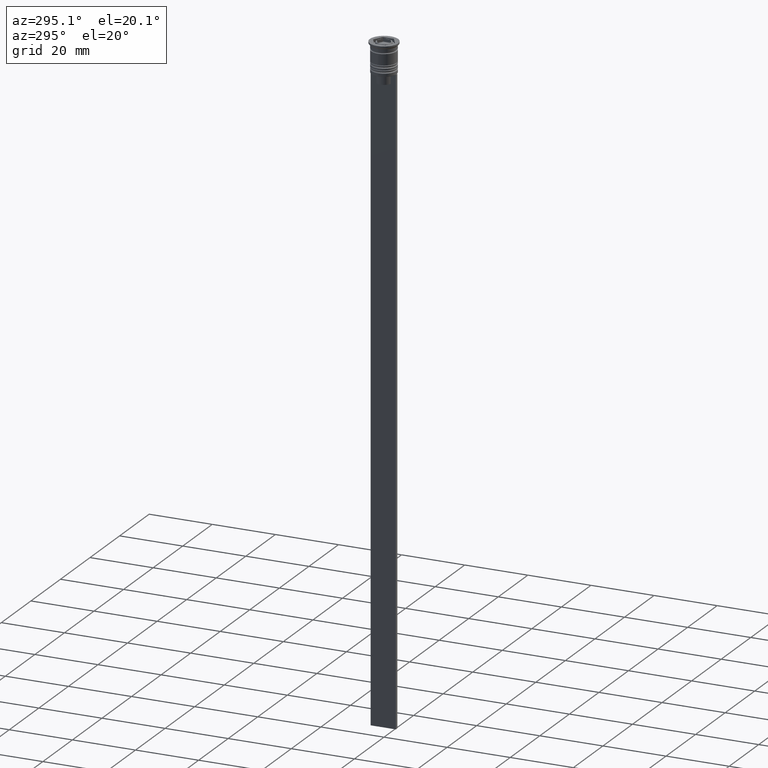
[diagram: clean part render]
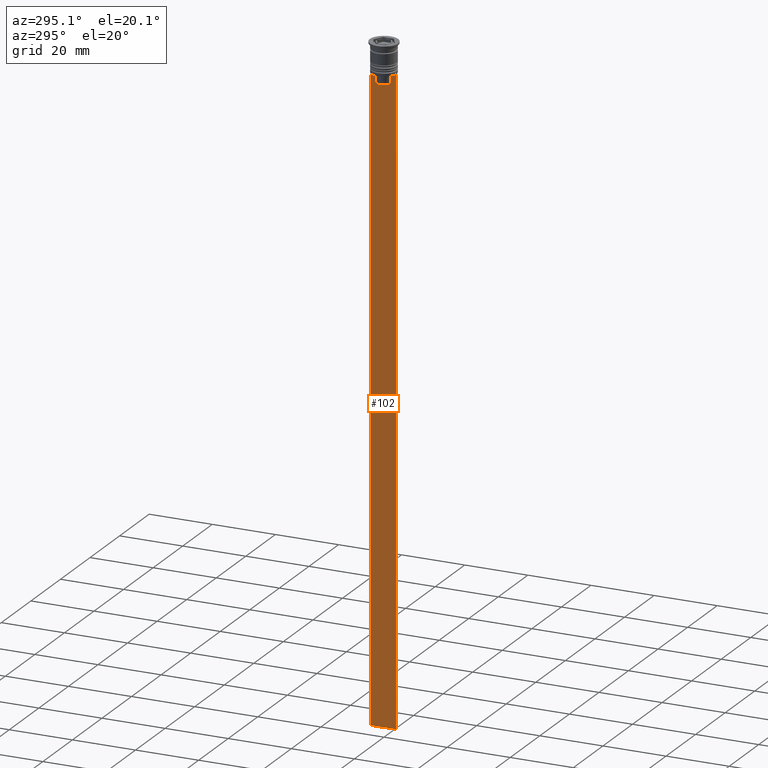
[diagram: same view with one face highlighted and labeled with its STEP entity id]
A machine part, auxiliary view. The second image highlights one B-rep face of the part: STEP entity #102.
In plain terms, the highlighted planar face has unit normal (-1, 0, 0).
Its self-contained STEP definition (entity closure, byte-faithful):
#15 = AXIS2_PLACEMENT_3D ( 'NONE', #1106, #2057, #1477 ) ;
#40 = LINE ( 'NONE', #2134, #1616 ) ;
#47 = ORIENTED_EDGE ( 'NONE', *, *, #1759, .F. ) ;
#90 = EDGE_LOOP ( 'NONE', ( #2059, #1266, #529, #1779, #1137, #2239, #1543, #2231, #47, #1643, #364, #498 ) ) ;
#102 = ADVANCED_FACE ( 'NONE', ( #1518 ), #316, .T. ) ;
#121 = B_SPLINE_CURVE_WITH_KNOTS ( 'NONE', 3,
 ( #825, #1218, #453, #251 ),
 .UNSPECIFIED., .F., .F.,
 ( 4, 4 ),
 ( 0.01178336557230038641, 0.01249758354768160454 ),
 .UNSPECIFIED. ) ;
#126 = DIRECTION ( 'NONE',  ( 0.000000000000000000, 0.000000000000000000, -1.000000000000000000 ) ) ;
#132 = LINE ( 'NONE', #2117, #380 ) ;
#165 = EDGE_CURVE ( 'NONE', #1805, #1261, #1710, .T. ) ;
#167 = DIRECTION ( 'NONE',  ( 0.000000000000000000, 0.000000000000000000, -1.000000000000000000 ) ) ;
#172 = VERTEX_POINT ( 'NONE', #1722 ) ;
#178 = CARTESIAN_POINT ( 'NONE',  ( -0.5000000000000000000, 2.856571371417138572, -9.500000000000000000 ) ) ;
#241 = DIRECTION ( 'NONE',  ( 0.000000000000000000, 1.000000000000000000, 0.000000000000000000 ) ) ;
#243 = CARTESIAN_POINT ( 'NONE',  ( -0.5000000000000000000, -4.000000000000000000, -209.5000000000000284 ) ) ;
#251 = CARTESIAN_POINT ( 'NONE',  ( -0.5000000000000000000, -2.856571371417138572, -9.500000000000000000 ) ) ;
#285 = CARTESIAN_POINT ( 'NONE',  ( -0.5000000000000000000, 2.687094542495897631, -9.666938847453439010 ) ) ;
#307 = VECTOR ( 'NONE', #1961, 1000.000000000000000 ) ;
#316 = PLANE ( 'NONE',  #15 ) ;
#344 = VECTOR ( 'NONE', #241, 1000.000000000000000 ) ;
#345 = DIRECTION ( 'NONE',  ( 0.000000000000000000, -1.000000000000000000, 0.000000000000000000 ) ) ;
#364 = ORIENTED_EDGE ( 'NONE', *, *, #165, .F. ) ;
#380 = VECTOR ( 'NONE', #731, 1000.000000000000000 ) ;
#384 = DIRECTION ( 'NONE',  ( 0.000000000000000000, -1.000000000000000000, 0.000000000000000000 ) ) ;
#418 = DIRECTION ( 'NONE',  ( 0.000000000000000000, -1.000000000000000000, 0.000000000000000000 ) ) ;
#448 = CARTESIAN_POINT ( 'NONE',  ( -0.5000000000000000000, -4.000000000000000000, -1.437742251701450202 ) ) ;
#452 = VERTEX_POINT ( 'NONE', #1915 ) ;
#453 = CARTESIAN_POINT ( 'NONE',  ( -0.5000000000000000000, -2.687095498514037839, -9.666937905752043037 ) ) ;
#470 = CARTESIAN_POINT ( 'NONE',  ( -0.5000000000000000000, 2.347338918861097135, -10.00000000000000000 ) ) ;
#498 = ORIENTED_EDGE ( 'NONE', *, *, #916, .F. ) ;
#524 = CARTESIAN_POINT ( 'NONE',  ( -0.5000000000000000000, 4.000000000000000000, -1.437742251701450202 ) ) ;
#529 = ORIENTED_EDGE ( 'NONE', *, *, #725, .F. ) ;
#535 = EDGE_CURVE ( 'NONE', #1913, #1441, #132, .T. ) ;
#586 = CARTESIAN_POINT ( 'NONE',  ( -0.5000000000000000000, -2.347338918861097135, 0.000000000000000000 ) ) ;
#600 = LINE ( 'NONE', #802, #1318 ) ;
#623 = LINE ( 'NONE', #1578, #344 ) ;
#648 = CARTESIAN_POINT ( 'NONE',  ( -0.5000000000000000000, 2.856571371417138572, -9.500000000000000000 ) ) ;
#706 = VERTEX_POINT ( 'NONE', #1414 ) ;
#725 = EDGE_CURVE ( 'NONE', #2407, #1913, #600, .T. ) ;
#731 = DIRECTION ( 'NONE',  ( 0.000000000000000000, -1.000000000000000000, 0.000000000000000000 ) ) ;
#740 = VERTEX_POINT ( 'NONE', #1981 ) ;
#802 = CARTESIAN_POINT ( 'NONE',  ( -0.5000000000000000000, -4.000000000000000000, -9.500000000000000000 ) ) ;
#825 = CARTESIAN_POINT ( 'NONE',  ( -0.5000000000000000000, -2.347338918861097135, -10.00000000000000000 ) ) ;
#884 = DIRECTION ( 'NONE',  ( 0.000000000000000000, 0.000000000000000000, -1.000000000000000000 ) ) ;
#916 = EDGE_CURVE ( 'NONE', #452, #1805, #1097, .T. ) ;
#1055 = CARTESIAN_POINT ( 'NONE',  ( -0.5000000000000000000, 2.517407211010871393, -9.833663366238582171 ) ) ;
#1061 = VERTEX_POINT ( 'NONE', #2370 ) ;
#1078 = VECTOR ( 'NONE', #1908, 1000.000000000000000 ) ;
#1097 = LINE ( 'NONE', #1724, #1611 ) ;
#1103 = CARTESIAN_POINT ( 'NONE',  ( -0.5000000000000000000, 3.867815921162741422, -9.500000000000000000 ) ) ;
#1106 = CARTESIAN_POINT ( 'NONE',  ( -0.5000000000000000000, -4.000000000000000000, -1.437742251701450202 ) ) ;
#1137 = ORIENTED_EDGE ( 'NONE', *, *, #1509, .F. ) ;
#1218 = CARTESIAN_POINT ( 'NONE',  ( -0.5000000000000000000, -2.517408374291112416, -9.833662228483172285 ) ) ;
#1246 = CARTESIAN_POINT ( 'NONE',  ( -0.5000000000000000000, -3.867815921162741422, -9.500000000000000000 ) ) ;
#1261 = VERTEX_POINT ( 'NONE', #2427 ) ;
#1266 = ORIENTED_EDGE ( 'NONE', *, *, #535, .F. ) ;
#1267 = EDGE_CURVE ( 'NONE', #740, #2305, #1652, .T. ) ;
#1284 = CARTESIAN_POINT ( 'NONE',  ( -0.5000000000000000000, 2.347338918861097135, -12.50000000000000000 ) ) ;
#1318 = VECTOR ( 'NONE', #418, 1000.000000000000000 ) ;
#1414 = CARTESIAN_POINT ( 'NONE',  ( -0.5000000000000000000, -2.856571371417138572, -9.500000000000000000 ) ) ;
#1441 = VERTEX_POINT ( 'NONE', #178 ) ;
#1477 = DIRECTION ( 'NONE',  ( 0.000000000000000000, 0.000000000000000000, 1.000000000000000000 ) ) ;
#1509 = EDGE_CURVE ( 'NONE', #2305, #1061, #623, .T. ) ;
#1518 = FACE_OUTER_BOUND ( 'NONE', #90, .T. ) ;
#1519 = LINE ( 'NONE', #524, #1535 ) ;
#1535 = VECTOR ( 'NONE', #167, 1000.000000000000000 ) ;
#1543 = ORIENTED_EDGE ( 'NONE', *, *, #1829, .F. ) ;
#1578 = CARTESIAN_POINT ( 'NONE',  ( -0.5000000000000000000, -4.000000000000000000, -209.5000000000000284 ) ) ;
#1610 = EDGE_CURVE ( 'NONE', #706, #1728, #40, .T. ) ;
#1611 = VECTOR ( 'NONE', #126, 1000.000000000000000 ) ;
#1616 = VECTOR ( 'NONE', #384, 1000.000000000000000 ) ;
#1643 = ORIENTED_EDGE ( 'NONE', *, *, #2496, .F. ) ;
#1652 = LINE ( 'NONE', #448, #1816 ) ;
#1710 = LINE ( 'NONE', #2261, #2416 ) ;
#1719 = CARTESIAN_POINT ( 'NONE',  ( -0.5000000000000000000, 4.000000000000000000, -9.500000000000000000 ) ) ;
#1722 = CARTESIAN_POINT ( 'NONE',  ( -0.5000000000000000000, -2.347338918861097135, -10.00000000000000000 ) ) ;
#1724 = CARTESIAN_POINT ( 'NONE',  ( -0.5000000000000000000, 2.347338918861097135, 0.000000000000000000 ) ) ;
#1728 = VERTEX_POINT ( 'NONE', #1246 ) ;
#1759 = EDGE_CURVE ( 'NONE', #172, #706, #121, .T. ) ;
#1779 = ORIENTED_EDGE ( 'NONE', *, *, #2021, .T. ) ;
#1805 = VERTEX_POINT ( 'NONE', #1284 ) ;
#1816 = VECTOR ( 'NONE', #884, 1000.000000000000000 ) ;
#1829 = EDGE_CURVE ( 'NONE', #1728, #740, #2120, .T. ) ;
#1908 = DIRECTION ( 'NONE',  ( 0.000000000000000000, -1.000000000000000000, 0.000000000000000000 ) ) ;
#1913 = VERTEX_POINT ( 'NONE', #1103 ) ;
#1915 = CARTESIAN_POINT ( 'NONE',  ( -0.5000000000000000000, 2.347338918861097135, -10.00000000000000000 ) ) ;
#1961 = DIRECTION ( 'NONE',  ( -0.000000000000000000, -0.000000000000000000, 1.000000000000000000 ) ) ;
#1981 = CARTESIAN_POINT ( 'NONE',  ( -0.5000000000000000000, -4.000000000000000000, -9.500000000000000000 ) ) ;
#2021 = EDGE_CURVE ( 'NONE', #2407, #1061, #1519, .T. ) ;
#2057 = DIRECTION ( 'NONE',  ( -1.000000000000000000, 0.000000000000000000, 0.000000000000000000 ) ) ;
#2059 = ORIENTED_EDGE ( 'NONE', *, *, #2198, .F. ) ;
#2089 = CARTESIAN_POINT ( 'NONE',  ( -0.5000000000000000000, -4.000000000000000000, -9.500000000000000000 ) ) ;
#2117 = CARTESIAN_POINT ( 'NONE',  ( -0.5000000000000000000, -4.000000000000000000, -9.500000000000000000 ) ) ;
#2120 = LINE ( 'NONE', #2089, #1078 ) ;
#2134 = CARTESIAN_POINT ( 'NONE',  ( -0.5000000000000000000, -4.000000000000000000, -9.500000000000000000 ) ) ;
#2161 = LINE ( 'NONE', #586, #307 ) ;
#2198 = EDGE_CURVE ( 'NONE', #1441, #452, #2200, .T. ) ;
#2200 = B_SPLINE_CURVE_WITH_KNOTS ( 'NONE', 3,
 ( #648, #285, #1055, #470 ),
 .UNSPECIFIED., .F., .F.,
 ( 4, 4 ),
 ( 0.004956812174141195064, 0.005670477137898153989 ),
 .UNSPECIFIED. ) ;
#2231 = ORIENTED_EDGE ( 'NONE', *, *, #1610, .F. ) ;
#2239 = ORIENTED_EDGE ( 'NONE', *, *, #1267, .F. ) ;
#2261 = CARTESIAN_POINT ( 'NONE',  ( -0.5000000000000000000, 2.399999999999996803, -12.50000000000000000 ) ) ;
#2305 = VERTEX_POINT ( 'NONE', #243 ) ;
#2370 = CARTESIAN_POINT ( 'NONE',  ( -0.5000000000000000000, 4.000000000000000000, -209.5000000000000284 ) ) ;
#2407 = VERTEX_POINT ( 'NONE', #1719 ) ;
#2416 = VECTOR ( 'NONE', #345, 1000.000000000000000 ) ;
#2427 = CARTESIAN_POINT ( 'NONE',  ( -0.5000000000000000000, -2.347338918861097135, -12.50000000000000000 ) ) ;
#2496 = EDGE_CURVE ( 'NONE', #1261, #172, #2161, .T. ) ;